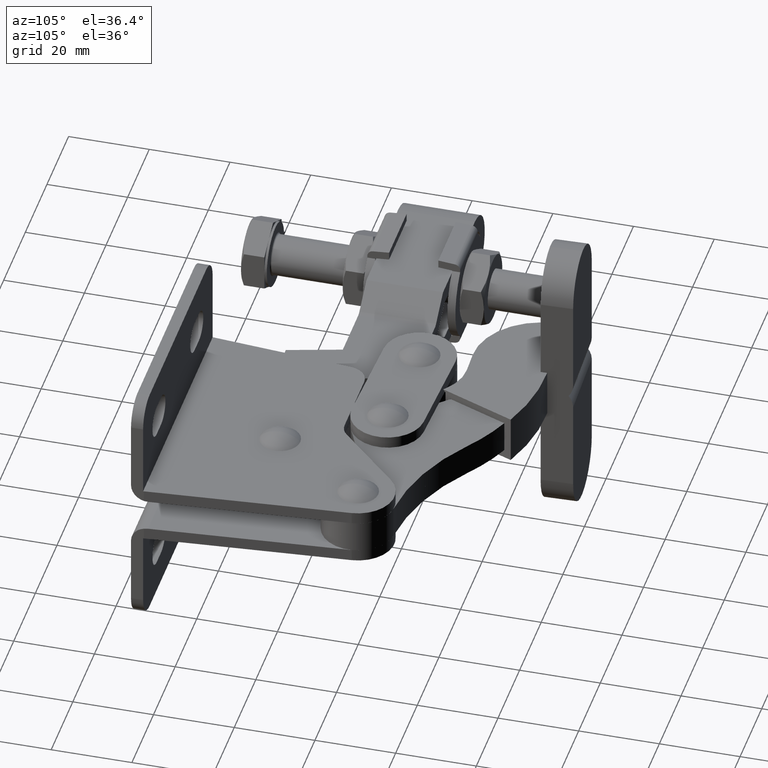
[diagram: clean part render]
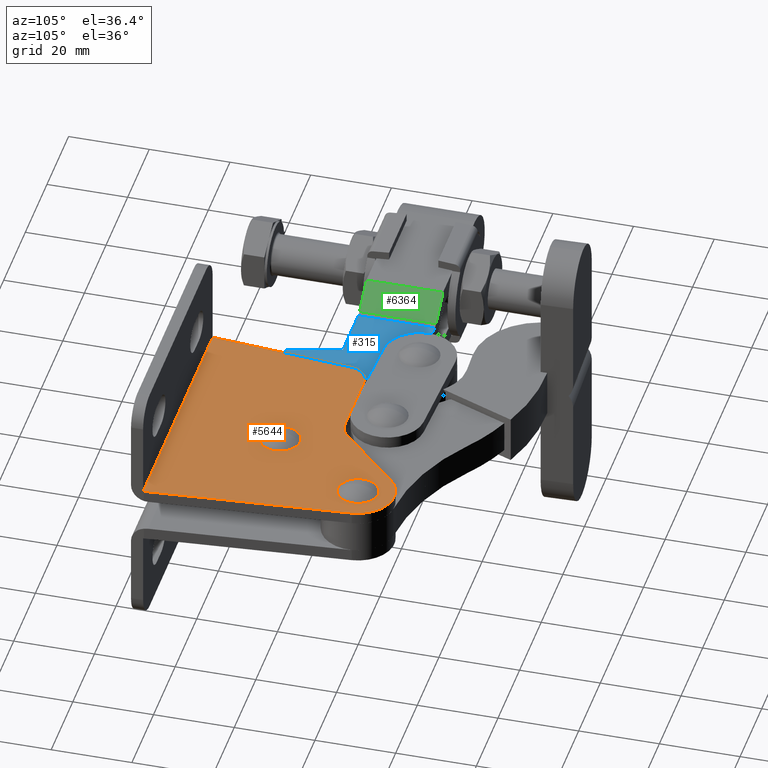
[diagram: same view with three faces highlighted in distinct colors, each labeled with its STEP entity id]
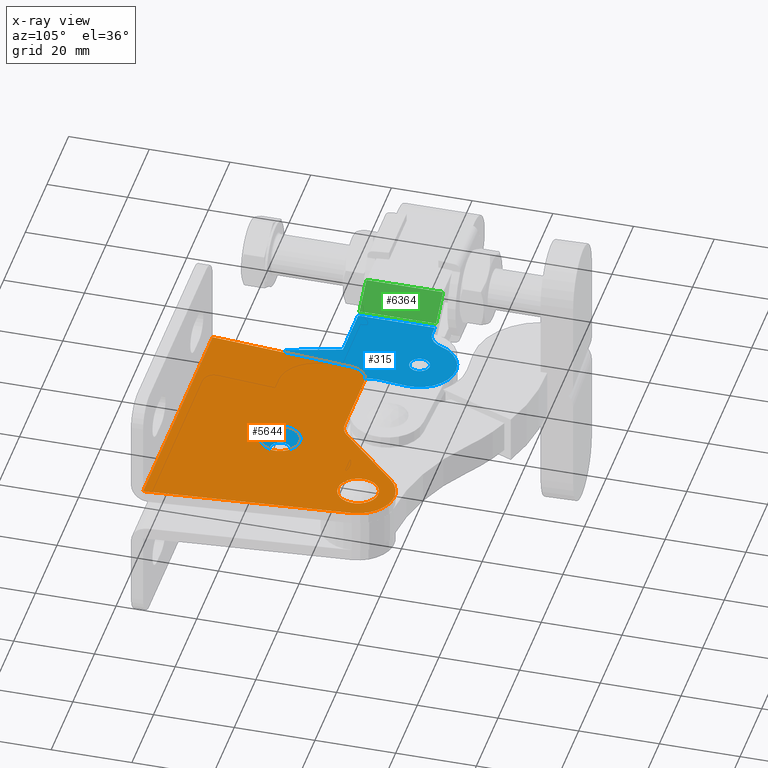
[diagram: x-ray of the same camera — body ghosted, the three highlighted faces saturated]
A machine part, auxiliary view with three faces highlighted in distinct colors.
The next image is the same camera in x-ray (body ghosted, the three faces saturated) — at least one of them is partly hidden behind the body in this view.
Their STEP definitions:

[orange] entity #5644 — the highlighted planar face has unit normal (0, 0, -1).
#47 = DIRECTION ( 'NONE',  ( -0.7071067811865474600, -0.7071067811865474600, -1.009929196850640400E-016 ) ) ;
#249 = EDGE_CURVE ( 'NONE', #8507, #10181, #8105, .T. ) ;
#422 = EDGE_CURVE ( 'NONE', #3282, #5321, #12393, .T. ) ;
#579 = CARTESIAN_POINT ( 'NONE',  ( -15.59000000000013000, -18.49999999999998900, 2.999999999999997800 ) ) ;
#670 = ORIENTED_EDGE ( 'NONE', *, *, #5726, .T. ) ;
#678 = ORIENTED_EDGE ( 'NONE', *, *, #13005, .T. ) ;
#710 = EDGE_CURVE ( 'NONE', #1479, #11455, #6810, .T. ) ;
#715 = DIRECTION ( 'NONE',  ( -0.0000000000000000000, -1.428255567222742900E-016, 1.000000000000000000 ) ) ;
#863 = CARTESIAN_POINT ( 'NONE',  ( -50.93493261757669900, 11.02874896437454800, 3.000000000000002700 ) ) ;
#921 = CARTESIAN_POINT ( 'NONE',  ( -47.87844802867417100, -14.56422128626162200, 2.999999999999998700 ) ) ;
#1039 = DIRECTION ( 'NONE',  ( -0.0000000000000000000, -1.428255567222742900E-016, 1.000000000000000000 ) ) ;
#1101 = EDGE_CURVE ( 'NONE', #10181, #8507, #5526, .T. ) ;
#1176 = EDGE_LOOP ( 'NONE', ( #4692, #7470 ) ) ;
#1193 = ORIENTED_EDGE ( 'NONE', *, *, #8618, .T. ) ;
#1217 = AXIS2_PLACEMENT_3D ( 'NONE', #12037, #11000, #3912 ) ;
#1225 = VERTEX_POINT ( 'NONE', #10647 ) ;
#1296 = AXIS2_PLACEMENT_3D ( 'NONE', #10253, #4167, #11262 ) ;
#1453 = DIRECTION ( 'NONE',  ( 0.0000000000000000000, 1.428255567222742900E-016, -1.000000000000000000 ) ) ;
#1479 = VERTEX_POINT ( 'NONE', #4917 ) ;
#1904 = VECTOR ( 'NONE', #9599, 1000.000000000000000 ) ;
#1914 = VERTEX_POINT ( 'NONE', #12461 ) ;
#1927 = ORIENTED_EDGE ( 'NONE', *, *, #9030, .T. ) ;
#1958 = DIRECTION ( 'NONE',  ( -0.0000000000000000000, 1.000000000000000000, 1.428255567222742900E-016 ) ) ;
#2047 = AXIS2_PLACEMENT_3D ( 'NONE', #7792, #715, #6769 ) ;
#2054 = VECTOR ( 'NONE', #13091, 1000.000000000000000 ) ;
#2152 = VECTOR ( 'NONE', #7093, 1000.000000000000000 ) ;
#2247 = CARTESIAN_POINT ( 'NONE',  ( -24.79898987322332000, -10.00000000000013900, 2.999999999999999600 ) ) ;
#2583 = CARTESIAN_POINT ( 'NONE',  ( -50.93493261757669900, -49.50000000000009900, 2.999999999999993800 ) ) ;
#2613 = EDGE_CURVE ( 'NONE', #2615, #5585, #4117, .T. ) ;
#2615 = VERTEX_POINT ( 'NONE', #9053 ) ;
#2895 = DIRECTION ( 'NONE',  ( 0.0000000000000000000, 1.000000000000000000, 1.428255567222742900E-016 ) ) ;
#3151 = CARTESIAN_POINT ( 'NONE',  ( 13.36506738242341000, -49.50000000000012100, 2.999999999999993800 ) ) ;
#3198 = VERTEX_POINT ( 'NONE', #4061 ) ;
#3215 = VECTOR ( 'NONE', #47, 1000.000000000000100 ) ;
#3282 = VERTEX_POINT ( 'NONE', #2247 ) ;
#3467 = ORIENTED_EDGE ( 'NONE', *, *, #249, .F. ) ;
#3630 = VECTOR ( 'NONE', #5162, 1000.000000000000100 ) ;
#3819 = AXIS2_PLACEMENT_3D ( 'NONE', #7081, #1039, #8118 ) ;
#3912 = DIRECTION ( 'NONE',  ( 0.0000000000000000000, 1.000000000000000000, 1.734723475976807300E-016 ) ) ;
#4061 = CARTESIAN_POINT ( 'NONE',  ( -21.26345596729054000, -8.535533905932847900, 2.999999999999999600 ) ) ;
#4117 = LINE ( 'NONE', #8043, #2054 ) ;
#4167 = DIRECTION ( 'NONE',  ( -0.0000000000000000000, -1.428255567222742900E-016, 1.000000000000000000 ) ) ;
#4185 = EDGE_CURVE ( 'NONE', #5585, #1914, #12949, .T. ) ;
#4211 = CARTESIAN_POINT ( 'NONE',  ( -15.59000000000013000, -23.49999999999998600, 2.999999999999996900 ) ) ;
#4377 = CIRCLE ( 'NONE', #8020, 5.000000000000070200 ) ;
#4692 = ORIENTED_EDGE ( 'NONE', *, *, #710, .T. ) ;
#4917 = CARTESIAN_POINT ( 'NONE',  ( 0.0000000000000000000, 4.999999999999998200, 3.000000000000001800 ) ) ;
#4920 = CARTESIAN_POINT ( 'NONE',  ( 0.0000000000000000000, -7.001852887884827100E-016, 3.000000000000000900 ) ) ;
#5022 = CARTESIAN_POINT ( 'NONE',  ( -42.89747453821564000, -10.00000000000013300, 2.999999999999999600 ) ) ;
#5078 = CARTESIAN_POINT ( 'NONE',  ( -6.123233995736766300E-016, -5.000000000000000000, 3.000000000000000000 ) ) ;
#5119 = FACE_BOUND ( 'NONE', #1176, .T. ) ;
#5155 = VECTOR ( 'NONE', #10268, 1000.000000000000000 ) ;
#5162 = DIRECTION ( 'NONE',  ( -0.08715574274766162100, -0.9961946980917452100, -1.422820623587314700E-016 ) ) ;
#5229 = DIRECTION ( 'NONE',  ( 0.0000000000000000000, 1.000000000000000000, 1.734723475976806800E-016 ) ) ;
#5321 = VERTEX_POINT ( 'NONE', #8444 ) ;
#5440 = VERTEX_POINT ( 'NONE', #2583 ) ;
#5526 = CIRCLE ( 'NONE', #2047, 5.000000000000000900 ) ;
#5585 = VERTEX_POINT ( 'NONE', #10868 ) ;
#5644 = ADVANCED_FACE ( 'NONE', ( #5119, #5758, #11484 ), #11997, .F. ) ;
#5726 = EDGE_CURVE ( 'NONE', #1225, #3198, #5915, .T. ) ;
#5758 = FACE_BOUND ( 'NONE', #10329, .T. ) ;
#5915 = LINE ( 'NONE', #8080, #3215 ) ;
#5917 = VERTEX_POINT ( 'NONE', #9315 ) ;
#5948 = DIRECTION ( 'NONE',  ( 0.0000000000000000000, 1.000000000000000000, 1.734723475976807300E-016 ) ) ;
#6164 = CIRCLE ( 'NONE', #6209, 4.999999999999999100 ) ;
#6191 = CARTESIAN_POINT ( 'NONE',  ( -47.87844802867417800, -14.56422128626168100, 2.999999999999999100 ) ) ;
#6209 = AXIS2_PLACEMENT_3D ( 'NONE', #4920, #12042, #5948 ) ;
#6407 = CIRCLE ( 'NONE', #1296, 4.999999999999809900 ) ;
#6753 = ORIENTED_EDGE ( 'NONE', *, *, #1101, .F. ) ;
#6769 = DIRECTION ( 'NONE',  ( 0.0000000000000000000, 1.000000000000000000, 1.734723475976806800E-016 ) ) ;
#6797 = EDGE_CURVE ( 'NONE', #12106, #5440, #11417, .T. ) ;
#6810 = CIRCLE ( 'NONE', #1217, 4.999999999999999100 ) ;
#7008 = CARTESIAN_POINT ( 'NONE',  ( -50.93493261757669900, 11.02874896437454800, 3.000000000000002700 ) ) ;
#7081 = CARTESIAN_POINT ( 'NONE',  ( 0.0000000000000000000, 0.0000000000000000000, 3.000000000000000900 ) ) ;
#7093 = DIRECTION ( 'NONE',  ( -0.0000000000000000000, 1.000000000000000000, 1.428255567222742900E-016 ) ) ;
#7222 = EDGE_CURVE ( 'NONE', #11455, #1479, #6164, .T. ) ;
#7259 = ORIENTED_EDGE ( 'NONE', *, *, #12599, .T. ) ;
#7360 = CIRCLE ( 'NONE', #3819, 9.000000000000069300 ) ;
#7470 = ORIENTED_EDGE ( 'NONE', *, *, #7222, .T. ) ;
#7501 = CARTESIAN_POINT ( 'NONE',  ( -24.79898987322331600, -5.000000000000067500, 3.000000000000000400 ) ) ;
#7792 = CARTESIAN_POINT ( 'NONE',  ( -15.59000000000013000, -23.49999999999998600, 2.999999999999996900 ) ) ;
#8020 = AXIS2_PLACEMENT_3D ( 'NONE', #7501, #1453, #8537 ) ;
#8043 = CARTESIAN_POINT ( 'NONE',  ( -50.93493261757669900, -49.70000000000002400, 2.999999999999993800 ) ) ;
#8080 = CARTESIAN_POINT ( 'NONE',  ( -6.363961030678846800, 6.363961030678846800, 3.000000000000001800 ) ) ;
#8105 = CIRCLE ( 'NONE', #8754, 5.000000000000000900 ) ;
#8118 = DIRECTION ( 'NONE',  ( 0.0000000000000000000, 1.000000000000000000, 1.445602896647328100E-016 ) ) ;
#8128 = CARTESIAN_POINT ( 'NONE',  ( 13.36506738242341000, 11.02874896437454800, 3.000000000000002700 ) ) ;
#8183 = CARTESIAN_POINT ( 'NONE',  ( -15.59000000000013000, -28.49999999999998600, 2.999999999999996000 ) ) ;
#8444 = CARTESIAN_POINT ( 'NONE',  ( -42.89747453821564000, -10.00000000000013300, 2.999999999999999600 ) ) ;
#8482 = AXIS2_PLACEMENT_3D ( 'NONE', #863, #8968, #2895 ) ;
#8507 = VERTEX_POINT ( 'NONE', #8183 ) ;
#8537 = DIRECTION ( 'NONE',  ( 0.0000000000000000000, 1.000000000000000000, 1.734723475976782700E-016 ) ) ;
#8618 = EDGE_CURVE ( 'NONE', #3198, #3282, #4377, .T. ) ;
#8754 = AXIS2_PLACEMENT_3D ( 'NONE', #4211, #11306, #5229 ) ;
#8968 = DIRECTION ( 'NONE',  ( 0.0000000000000000000, 1.428255567222742900E-016, -1.000000000000000000 ) ) ;
#9025 = ORIENTED_EDGE ( 'NONE', *, *, #10395, .F. ) ;
#9030 = EDGE_CURVE ( 'NONE', #1914, #5917, #10244, .T. ) ;
#9053 = CARTESIAN_POINT ( 'NONE',  ( -50.93493261757669900, -49.70000000000002400, 2.999999999999993800 ) ) ;
#9270 = ORIENTED_EDGE ( 'NONE', *, *, #6797, .T. ) ;
#9315 = CARTESIAN_POINT ( 'NONE',  ( 8.965752282825780700, 0.7844016847289018200, 3.000000000000002200 ) ) ;
#9599 = DIRECTION ( 'NONE',  ( -1.000000000000000000, 0.0000000000000000000, 0.0000000000000000000 ) ) ;
#10146 = VECTOR ( 'NONE', #1958, 1000.000000000000000 ) ;
#10181 = VERTEX_POINT ( 'NONE', #579 ) ;
#10244 = LINE ( 'NONE', #3151, #5155 ) ;
#10253 = CARTESIAN_POINT ( 'NONE',  ( -42.89747453821564000, -14.99999999999994000, 2.999999999999998700 ) ) ;
#10262 = ORIENTED_EDGE ( 'NONE', *, *, #422, .T. ) ;
#10268 = DIRECTION ( 'NONE',  ( -0.08715574274766120500, 0.9961946980917453200, 1.422820623587314700E-016 ) ) ;
#10329 = EDGE_LOOP ( 'NONE', ( #6753, #3467 ) ) ;
#10395 = EDGE_CURVE ( 'NONE', #2615, #5440, #10779, .T. ) ;
#10647 = CARTESIAN_POINT ( 'NONE',  ( -6.363961030679005800, 6.363961030678948000, 3.000000000000001800 ) ) ;
#10779 = LINE ( 'NONE', #7008, #10146 ) ;
#10868 = CARTESIAN_POINT ( 'NONE',  ( 13.36506738242341000, -49.70000000000002400, 2.999999999999993800 ) ) ;
#11000 = DIRECTION ( 'NONE',  ( 0.0000000000000000000, 1.428255567222742900E-016, -1.000000000000000000 ) ) ;
#11008 = ORIENTED_EDGE ( 'NONE', *, *, #2613, .T. ) ;
#11262 = DIRECTION ( 'NONE',  ( 0.0000000000000000000, 1.000000000000000000, 1.734723475976873200E-016 ) ) ;
#11306 = DIRECTION ( 'NONE',  ( -0.0000000000000000000, -1.428255567222742900E-016, 1.000000000000000000 ) ) ;
#11417 = LINE ( 'NONE', #6191, #3630 ) ;
#11455 = VERTEX_POINT ( 'NONE', #5078 ) ;
#11484 = FACE_OUTER_BOUND ( 'NONE', #12390, .T. ) ;
#11840 = ORIENTED_EDGE ( 'NONE', *, *, #4185, .T. ) ;
#11997 = PLANE ( 'NONE',  #8482 ) ;
#12037 = CARTESIAN_POINT ( 'NONE',  ( 0.0000000000000000000, -7.001852887884827100E-016, 3.000000000000000900 ) ) ;
#12042 = DIRECTION ( 'NONE',  ( 0.0000000000000000000, 1.428255567222742900E-016, -1.000000000000000000 ) ) ;
#12106 = VERTEX_POINT ( 'NONE', #921 ) ;
#12390 = EDGE_LOOP ( 'NONE', ( #1927, #7259, #670, #1193, #10262, #678, #9270, #9025, #11008, #11840 ) ) ;
#12393 = LINE ( 'NONE', #5022, #1904 ) ;
#12461 = CARTESIAN_POINT ( 'NONE',  ( 13.36506738242341000, -49.50000000000010700, 2.999999999999993800 ) ) ;
#12599 = EDGE_CURVE ( 'NONE', #5917, #1225, #7360, .T. ) ;
#12949 = LINE ( 'NONE', #8128, #2152 ) ;
#13005 = EDGE_CURVE ( 'NONE', #5321, #12106, #6407, .T. ) ;
#13091 = DIRECTION ( 'NONE',  ( 1.000000000000000000, -0.0000000000000000000, -0.0000000000000000000 ) ) ;

[blue] entity #315 — the highlighted planar face has unit normal (0, 0, 1).
#130 = CARTESIAN_POINT ( 'NONE',  ( -72.29433389352901400, -32.50000000969697600, 0.0000000000000000000 ) ) ;
#308 = EDGE_CURVE ( 'NONE', #12009, #11135, #6516, .T. ) ;
#315 = ADVANCED_FACE ( 'NONE', ( #3814, #11590, #6198 ), #10523, .T. ) ;
#356 = CARTESIAN_POINT ( 'NONE',  ( -47.90999571634688400, -0.8524422382522843800, 0.0000000000000000000 ) ) ;
#427 = DIRECTION ( 'NONE',  ( 0.0000000000000000000, 0.0000000000000000000, 1.000000000000000000 ) ) ;
#474 = LINE ( 'NONE', #130, #3127 ) ;
#531 = VERTEX_POINT ( 'NONE', #2412 ) ;
#637 = B_SPLINE_CURVE_WITH_KNOTS ( 'NONE', 3,
 ( #11701, #2568, #6647, #761 ),
 .UNSPECIFIED., .F., .F.,
 ( 4, 4 ),
 ( 0.0000000000000000000, 0.02170940119801000400 ),
 .UNSPECIFIED. ) ;
#726 = AXIS2_PLACEMENT_3D ( 'NONE', #2902, #9992, #3924 ) ;
#739 = DIRECTION ( 'NONE',  ( 1.000000000000000000, 0.0000000000000000000, 0.0000000000000000000 ) ) ;
#761 = CARTESIAN_POINT ( 'NONE',  ( -38.35121909480087500, -17.64978583320179000, 0.0000000000000000000 ) ) ;
#919 = VECTOR ( 'NONE', #9879, 1000.000000000000000 ) ;
#942 = CARTESIAN_POINT ( 'NONE',  ( -38.35121909480087500, -17.64978583320179000, 0.0000000000000000000 ) ) ;
#1016 = ORIENTED_EDGE ( 'NONE', *, *, #3338, .F. ) ;
#1041 = VECTOR ( 'NONE', #10343, 1000.000000000000000 ) ;
#1137 = ORIENTED_EDGE ( 'NONE', *, *, #6380, .T. ) ;
#1246 = LINE ( 'NONE', #2778, #919 ) ;
#1313 = EDGE_LOOP ( 'NONE', ( #2342, #12428, #12931, #2537, #7205, #2327, #10007, #9779, #1137, #1939, #10124, #11926 ) ) ;
#1421 = DIRECTION ( 'NONE',  ( -1.000000000000000000, 0.0000000000000000000, 0.0000000000000000000 ) ) ;
#1433 = CARTESIAN_POINT ( 'NONE',  ( -56.86953488110086100, 4.163336342344337000E-014, 0.0000000000000000000 ) ) ;
#1495 = AXIS2_PLACEMENT_3D ( 'NONE', #10511, #4410, #11517 ) ;
#1504 = DIRECTION ( 'NONE',  ( -0.0000000000000000000, -0.0000000000000000000, 1.000000000000000000 ) ) ;
#1507 = ORIENTED_EDGE ( 'NONE', *, *, #7482, .F. ) ;
#1939 = ORIENTED_EDGE ( 'NONE', *, *, #8877, .T. ) ;
#1982 = EDGE_CURVE ( 'NONE', #5210, #4153, #4456, .T. ) ;
#2327 = ORIENTED_EDGE ( 'NONE', *, *, #10456, .T. ) ;
#2342 = ORIENTED_EDGE ( 'NONE', *, *, #11331, .T. ) ;
#2412 = CARTESIAN_POINT ( 'NONE',  ( -58.09761856523894600, -19.36000000000014500, 0.0000000000000000000 ) ) ;
#2437 = DIRECTION ( 'NONE',  ( 1.000000000000000000, 0.0000000000000000000, 0.0000000000000000000 ) ) ;
#2537 = ORIENTED_EDGE ( 'NONE', *, *, #3688, .T. ) ;
#2563 = EDGE_CURVE ( 'NONE', #531, #11964, #12529, .T. ) ;
#2568 = CARTESIAN_POINT ( 'NONE',  ( -24.02277203427345100, -15.60982818093332200, 0.0000000000000000000 ) ) ;
#2778 = CARTESIAN_POINT ( 'NONE',  ( -39.24505394508406700, -19.36000000000030100, 0.0000000000000000000 ) ) ;
#2902 = CARTESIAN_POINT ( 'NONE',  ( -70.07825917930959700, 4.640000000000015700, 0.0000000000000000000 ) ) ;
#2944 = CIRCLE ( 'NONE', #726, 5.000000000000073700 ) ;
#3127 = VECTOR ( 'NONE', #12209, 1000.000000000000000 ) ;
#3157 = CARTESIAN_POINT ( 'NONE',  ( -48.61976759881039800, -8.739635178303997200, 0.0000000000000000000 ) ) ;
#3159 = DIRECTION ( 'NONE',  ( -0.0000000000000000000, -0.0000000000000000000, 1.000000000000000000 ) ) ;
#3338 = EDGE_CURVE ( 'NONE', #3992, #10028, #7084, .T. ) ;
#3688 = EDGE_CURVE ( 'NONE', #12764, #10127, #5513, .T. ) ;
#3698 = CARTESIAN_POINT ( 'NONE',  ( -54.41386719372435000, -32.50000000969696900, 0.0000000000000000000 ) ) ;
#3814 = FACE_OUTER_BOUND ( 'NONE', #1313, .T. ) ;
#3816 = CARTESIAN_POINT ( 'NONE',  ( -48.35620308800484000, -5.542276038800476800, 0.0000000000000000000 ) ) ;
#3818 = CARTESIAN_POINT ( 'NONE',  ( -15.59000000000019200, -32.50000000969697600, 0.0000000000000000000 ) ) ;
#3857 = B_SPLINE_CURVE_WITH_KNOTS ( 'NONE', 3,
 ( #9849, #3816, #10905, #4816 ),
 .UNSPECIFIED., .F., .F.,
 ( 4, 4 ),
 ( 0.0000000000000000000, 0.007066519278570001500 ),
 .UNSPECIFIED. ) ;
#3924 = DIRECTION ( 'NONE',  ( -1.000000000000000000, 0.0000000000000000000, 0.0000000000000000000 ) ) ;
#3933 = EDGE_CURVE ( 'NONE', #9839, #12410, #5822, .T. ) ;
#3992 = VERTEX_POINT ( 'NONE', #5733 ) ;
#4135 = DIRECTION ( 'NONE',  ( 0.0000000000000000000, 0.0000000000000000000, -1.000000000000000000 ) ) ;
#4153 = VERTEX_POINT ( 'NONE', #10126 ) ;
#4204 = ORIENTED_EDGE ( 'NONE', *, *, #8778, .F. ) ;
#4410 = DIRECTION ( 'NONE',  ( 0.0000000000000000000, 0.0000000000000000000, 1.000000000000000000 ) ) ;
#4418 = CIRCLE ( 'NONE', #12312, 9.000000000000063900 ) ;
#4422 = CARTESIAN_POINT ( 'NONE',  ( -72.29433389352901400, -0.3599999999998951300, 0.0000000000000000000 ) ) ;
#4456 = CIRCLE ( 'NONE', #11232, 9.000000000000063900 ) ;
#4736 = VERTEX_POINT ( 'NONE', #942 ) ;
#4816 = CARTESIAN_POINT ( 'NONE',  ( -47.90999571634688400, -0.8524422382522843800, 0.0000000000000000000 ) ) ;
#4839 = CIRCLE ( 'NONE', #9119, 2.500000000000000400 ) ;
#4874 = CARTESIAN_POINT ( 'NONE',  ( -56.25558942886252800, -25.93054736565913400, 0.0000000000000000000 ) ) ;
#5210 = VERTEX_POINT ( 'NONE', #3157 ) ;
#5319 = DIRECTION ( 'NONE',  ( -1.000000000000000000, -0.0000000000000000000, -0.0000000000000000000 ) ) ;
#5456 = EDGE_LOOP ( 'NONE', ( #1507, #11868 ) ) ;
#5513 = CIRCLE ( 'NONE', #8710, 9.000000000000069300 ) ;
#5597 = CARTESIAN_POINT ( 'NONE',  ( -56.86953488110086100, 4.163336342344337000E-014, 0.0000000000000000000 ) ) ;
#5685 = CIRCLE ( 'NONE', #5697, 2.500000000000002200 ) ;
#5686 = EDGE_LOOP ( 'NONE', ( #1016, #4204 ) ) ;
#5697 = AXIS2_PLACEMENT_3D ( 'NONE', #1433, #8522, #2437 ) ;
#5733 = CARTESIAN_POINT ( 'NONE',  ( -13.09000000000019200, -23.49999999999994300, 0.0000000000000000000 ) ) ;
#5775 = AXIS2_PLACEMENT_3D ( 'NONE', #11527, #427, #7474 ) ;
#5822 = CIRCLE ( 'NONE', #12129, 2.500000000000002200 ) ;
#6064 = EDGE_CURVE ( 'NONE', #10127, #4736, #637, .T. ) ;
#6101 = CARTESIAN_POINT ( 'NONE',  ( -65.36059617320177000, 2.983601569427989800, 0.0000000000000000000 ) ) ;
#6198 = FACE_BOUND ( 'NONE', #5686, .T. ) ;
#6380 = EDGE_CURVE ( 'NONE', #7451, #6757, #7299, .T. ) ;
#6516 = LINE ( 'NONE', #12420, #9210 ) ;
#6622 = DIRECTION ( 'NONE',  ( 1.000000000000000000, 0.0000000000000000000, 0.0000000000000000000 ) ) ;
#6647 = CARTESIAN_POINT ( 'NONE',  ( -31.18699556453709600, -16.62980700706755100, 0.0000000000000000000 ) ) ;
#6701 = CARTESIAN_POINT ( 'NONE',  ( -54.36953488110085400, 4.163336342344337000E-014, 0.0000000000000000000 ) ) ;
#6757 = VERTEX_POINT ( 'NONE', #6101 ) ;
#6794 = DIRECTION ( 'NONE',  ( 0.0000000000000000000, 0.0000000000000000000, 1.000000000000000000 ) ) ;
#7084 = CIRCLE ( 'NONE', #1495, 2.500000000000000400 ) ;
#7122 = VECTOR ( 'NONE', #10958, 1000.000000000000100 ) ;
#7205 = ORIENTED_EDGE ( 'NONE', *, *, #6064, .T. ) ;
#7261 = CARTESIAN_POINT ( 'NONE',  ( -39.24505394508406700, -32.50000000969697600, 0.0000000000000000000 ) ) ;
#7299 = CIRCLE ( 'NONE', #7892, 9.000000000000049700 ) ;
#7451 = VERTEX_POINT ( 'NONE', #356 ) ;
#7474 = DIRECTION ( 'NONE',  ( 1.000000000000000000, 0.0000000000000000000, 0.0000000000000000000 ) ) ;
#7482 = EDGE_CURVE ( 'NONE', #12410, #9839, #5685, .T. ) ;
#7551 = CARTESIAN_POINT ( 'NONE',  ( -56.86953489112801900, 3.523528691040667100E-009, 0.0000000000000000000 ) ) ;
#7892 = AXIS2_PLACEMENT_3D ( 'NONE', #7551, #1504, #8579 ) ;
#8522 = DIRECTION ( 'NONE',  ( 0.0000000000000000000, 0.0000000000000000000, 1.000000000000000000 ) ) ;
#8579 = DIRECTION ( 'NONE',  ( -1.000000000000000000, 1.776356839403112800E-015, 0.0000000000000000000 ) ) ;
#8710 = AXIS2_PLACEMENT_3D ( 'NONE', #9250, #3159, #10276 ) ;
#8778 = EDGE_CURVE ( 'NONE', #10028, #3992, #4839, .T. ) ;
#8877 = EDGE_CURVE ( 'NONE', #6757, #12009, #2944, .T. ) ;
#8944 = CARTESIAN_POINT ( 'NONE',  ( -18.09000000000019200, -23.49999999999994300, 0.0000000000000000000 ) ) ;
#9108 = LINE ( 'NONE', #7261, #1041 ) ;
#9115 = CARTESIAN_POINT ( 'NONE',  ( -16.85854850400983900, -14.58984935479912300, 0.0000000000000000000 ) ) ;
#9119 = AXIS2_PLACEMENT_3D ( 'NONE', #12872, #6794, #739 ) ;
#9210 = VECTOR ( 'NONE', #5319, 1000.000000000000000 ) ;
#9250 = CARTESIAN_POINT ( 'NONE',  ( -15.59000000000019200, -23.50000000969690500, 0.0000000000000000000 ) ) ;
#9371 = EDGE_CURVE ( 'NONE', #4153, #7451, #3857, .T. ) ;
#9779 = ORIENTED_EDGE ( 'NONE', *, *, #9371, .T. ) ;
#9839 = VERTEX_POINT ( 'NONE', #10683 ) ;
#9849 = CARTESIAN_POINT ( 'NONE',  ( -48.57930677383375700, -7.887192939074530800, 0.0000000000000000000 ) ) ;
#9879 = DIRECTION ( 'NONE',  ( 1.000000000000000000, 0.0000000000000000000, 0.0000000000000000000 ) ) ;
#9992 = DIRECTION ( 'NONE',  ( 0.0000000000000000000, 0.0000000000000000000, -1.000000000000000000 ) ) ;
#10007 = ORIENTED_EDGE ( 'NONE', *, *, #1982, .T. ) ;
#10028 = VERTEX_POINT ( 'NONE', #8944 ) ;
#10124 = ORIENTED_EDGE ( 'NONE', *, *, #308, .T. ) ;
#10126 = CARTESIAN_POINT ( 'NONE',  ( -48.57930677383375700, -7.887192939074530800, 0.0000000000000000000 ) ) ;
#10127 = VERTEX_POINT ( 'NONE', #9115 ) ;
#10223 = CARTESIAN_POINT ( 'NONE',  ( -39.61976759881033400, -8.739635178303997200, 0.0000000000000000000 ) ) ;
#10276 = DIRECTION ( 'NONE',  ( -1.000000000000000000, 0.0000000000000000000, 0.0000000000000000000 ) ) ;
#10343 = DIRECTION ( 'NONE',  ( 1.000000000000000000, 0.0000000000000000000, 0.0000000000000000000 ) ) ;
#10456 = EDGE_CURVE ( 'NONE', #4736, #5210, #4418, .T. ) ;
#10511 = CARTESIAN_POINT ( 'NONE',  ( -15.59000000000019200, -23.49999999999994300, 0.0000000000000000000 ) ) ;
#10523 = PLANE ( 'NONE',  #5775 ) ;
#10555 = DIRECTION ( 'NONE',  ( 0.0000000000000000000, 0.0000000000000000000, -1.000000000000000000 ) ) ;
#10683 = CARTESIAN_POINT ( 'NONE',  ( -59.36953488110086100, 4.193952512323020800E-014, 0.0000000000000000000 ) ) ;
#10905 = CARTESIAN_POINT ( 'NONE',  ( -48.13309940217587300, -3.197359138526382900, 0.0000000000000000000 ) ) ;
#10958 = DIRECTION ( 'NONE',  ( 0.2699391815934372200, -0.9628773744567192800, 0.0000000000000000000 ) ) ;
#10959 = EDGE_CURVE ( 'NONE', #11135, #12133, #474, .T. ) ;
#11029 = CARTESIAN_POINT ( 'NONE',  ( -39.61976759881033400, -8.739635178303997200, 0.0000000000000000000 ) ) ;
#11135 = VERTEX_POINT ( 'NONE', #4422 ) ;
#11227 = DIRECTION ( 'NONE',  ( -1.000000000000000000, 0.0000000000000000000, 0.0000000000000000000 ) ) ;
#11232 = AXIS2_PLACEMENT_3D ( 'NONE', #11029, #10555, #1421 ) ;
#11331 = EDGE_CURVE ( 'NONE', #12133, #531, #1246, .T. ) ;
#11517 = DIRECTION ( 'NONE',  ( 1.000000000000000000, 0.0000000000000000000, 0.0000000000000000000 ) ) ;
#11527 = CARTESIAN_POINT ( 'NONE',  ( -72.29433389352901400, -32.50000000969697600, 0.0000000000000000000 ) ) ;
#11590 = FACE_BOUND ( 'NONE', #5456, .T. ) ;
#11701 = CARTESIAN_POINT ( 'NONE',  ( -16.85854850400983900, -14.58984935479912300, 0.0000000000000000000 ) ) ;
#11858 = CARTESIAN_POINT ( 'NONE',  ( -70.07825917930959700, -0.3600000000000269700, 0.0000000000000000000 ) ) ;
#11868 = ORIENTED_EDGE ( 'NONE', *, *, #3933, .F. ) ;
#11926 = ORIENTED_EDGE ( 'NONE', *, *, #10959, .T. ) ;
#11964 = VERTEX_POINT ( 'NONE', #3698 ) ;
#12009 = VERTEX_POINT ( 'NONE', #11858 ) ;
#12129 = AXIS2_PLACEMENT_3D ( 'NONE', #5597, #12684, #6622 ) ;
#12133 = VERTEX_POINT ( 'NONE', #12178 ) ;
#12178 = CARTESIAN_POINT ( 'NONE',  ( -72.29433389352901400, -19.36000000000027300, 0.0000000000000000000 ) ) ;
#12209 = DIRECTION ( 'NONE',  ( -0.0000000000000000000, -1.000000000000000000, -0.0000000000000000000 ) ) ;
#12312 = AXIS2_PLACEMENT_3D ( 'NONE', #10223, #4135, #11227 ) ;
#12410 = VERTEX_POINT ( 'NONE', #6701 ) ;
#12420 = CARTESIAN_POINT ( 'NONE',  ( -39.24505394508406700, -0.3599999999999992100, 0.0000000000000000000 ) ) ;
#12428 = ORIENTED_EDGE ( 'NONE', *, *, #2563, .T. ) ;
#12529 = LINE ( 'NONE', #4874, #7122 ) ;
#12684 = DIRECTION ( 'NONE',  ( 0.0000000000000000000, 0.0000000000000000000, 1.000000000000000000 ) ) ;
#12701 = EDGE_CURVE ( 'NONE', #11964, #12764, #9108, .T. ) ;
#12764 = VERTEX_POINT ( 'NONE', #3818 ) ;
#12872 = CARTESIAN_POINT ( 'NONE',  ( -15.59000000000019200, -23.49999999999994300, 0.0000000000000000000 ) ) ;
#12931 = ORIENTED_EDGE ( 'NONE', *, *, #12701, .T. ) ;

[green] entity #6364 — the highlighted planar face has unit normal (0.5938, 0, 0.8046).
#14 = CARTESIAN_POINT ( 'NONE',  ( -73.48202854718755400, -9.860000000000020700, 0.3908445041976710300 ) ) ;
#423 = CARTESIAN_POINT ( 'NONE',  ( -79.93000000000013500, -19.36000000000024500, 5.149999999999973700 ) ) ;
#1015 = DIRECTION ( 'NONE',  ( 0.0000000000000000000, -1.000000000000000000, 0.0000000000000000000 ) ) ;
#1249 = CARTESIAN_POINT ( 'NONE',  ( -73.48202854718755400, -0.3599999999997944800, 0.3908445041976710300 ) ) ;
#1556 = CARTESIAN_POINT ( 'NONE',  ( -77.78067618239597900, -19.36000000000024500, 3.563614834732545600 ) ) ;
#2272 = VERTEX_POINT ( 'NONE', #2652 ) ;
#2304 = LINE ( 'NONE', #14, #4995 ) ;
#2367 = VERTEX_POINT ( 'NONE', #3097 ) ;
#2457 = CARTESIAN_POINT ( 'NONE',  ( -79.93000000000013500, -19.36000000000024500, 5.149999999999973700 ) ) ;
#2652 = CARTESIAN_POINT ( 'NONE',  ( -79.93000000000027700, -0.3599999999997944800, 5.149999999999973700 ) ) ;
#2727 = ORIENTED_EDGE ( 'NONE', *, *, #8956, .F. ) ;
#3097 = CARTESIAN_POINT ( 'NONE',  ( -73.48202854718755400, -0.3599999999997944800, 0.3908445041976710300 ) ) ;
#3482 = DIRECTION ( 'NONE',  ( 0.5938473268292621100, -0.0000000000000000000, 0.8045777479011829700 ) ) ;
#3579 = CARTESIAN_POINT ( 'NONE',  ( -73.48202854718749700, -19.36000000000024500, 0.3908445041976805800 ) ) ;
#4253 = CARTESIAN_POINT ( 'NONE',  ( -73.48202854718749700, -19.36000000000024500, 0.3908445041976805800 ) ) ;
#4995 = VECTOR ( 'NONE', #1015, 1000.000000000000000 ) ;
#5264 = CARTESIAN_POINT ( 'NONE',  ( -77.78067618239614900, -0.3599999999997944800, 3.563614834732546500 ) ) ;
#5797 = B_SPLINE_CURVE_WITH_KNOTS ( 'NONE', 3,
 ( #6279, #5264, #7294, #1249 ),
 .UNSPECIFIED., .F., .F.,
 ( 4, 4 ),
 ( -0.008672262663030002500, -0.0006581565438499997800 ),
 .UNSPECIFIED. ) ;
#6058 = EDGE_CURVE ( 'NONE', #13051, #8196, #12756, .T. ) ;
#6279 = CARTESIAN_POINT ( 'NONE',  ( -79.93000000000027700, -0.3599999999997944800, 5.149999999999973700 ) ) ;
#6364 = ADVANCED_FACE ( 'NONE', ( #7942 ), #9557, .T. ) ;
#6469 = DIRECTION ( 'NONE',  ( -0.0000000000000000000, -1.000000000000000000, -0.0000000000000000000 ) ) ;
#6718 = EDGE_LOOP ( 'NONE', ( #9654, #11647, #7070, #2727 ) ) ;
#6937 = VECTOR ( 'NONE', #6469, 1000.000000000000000 ) ;
#7070 = ORIENTED_EDGE ( 'NONE', *, *, #6058, .F. ) ;
#7294 = CARTESIAN_POINT ( 'NONE',  ( -75.63135236479193700, -0.3599999999997944800, 1.977229669465119200 ) ) ;
#7942 = FACE_OUTER_BOUND ( 'NONE', #6718, .T. ) ;
#8149 = EDGE_CURVE ( 'NONE', #2272, #8196, #9950, .T. ) ;
#8196 = VERTEX_POINT ( 'NONE', #8582 ) ;
#8570 = AXIS2_PLACEMENT_3D ( 'NONE', #2457, #3482, #10589 ) ;
#8582 = CARTESIAN_POINT ( 'NONE',  ( -79.93000000000019200, -19.36000000000024500, 5.149999999999973700 ) ) ;
#8639 = CARTESIAN_POINT ( 'NONE',  ( -75.63135236479170900, -19.36000000000024500, 1.977229669465118400 ) ) ;
#8956 = EDGE_CURVE ( 'NONE', #2367, #13051, #2304, .T. ) ;
#9557 = PLANE ( 'NONE',  #8570 ) ;
#9654 = ORIENTED_EDGE ( 'NONE', *, *, #11579, .F. ) ;
#9950 = LINE ( 'NONE', #423, #6937 ) ;
#10589 = DIRECTION ( 'NONE',  ( 0.8045777479011829700, 0.0000000000000000000, -0.5938473268292621100 ) ) ;
#10691 = CARTESIAN_POINT ( 'NONE',  ( -79.93000000000019200, -19.36000000000024500, 5.149999999999973700 ) ) ;
#11579 = EDGE_CURVE ( 'NONE', #2272, #2367, #5797, .T. ) ;
#11647 = ORIENTED_EDGE ( 'NONE', *, *, #8149, .T. ) ;
#12756 = B_SPLINE_CURVE_WITH_KNOTS ( 'NONE', 3,
 ( #3579, #8639, #1556, #10691 ),
 .UNSPECIFIED., .F., .F.,
 ( 4, 4 ),
 ( -0.03899431808772000500, -0.03098021196854000900 ),
 .UNSPECIFIED. ) ;
#13051 = VERTEX_POINT ( 'NONE', #4253 ) ;